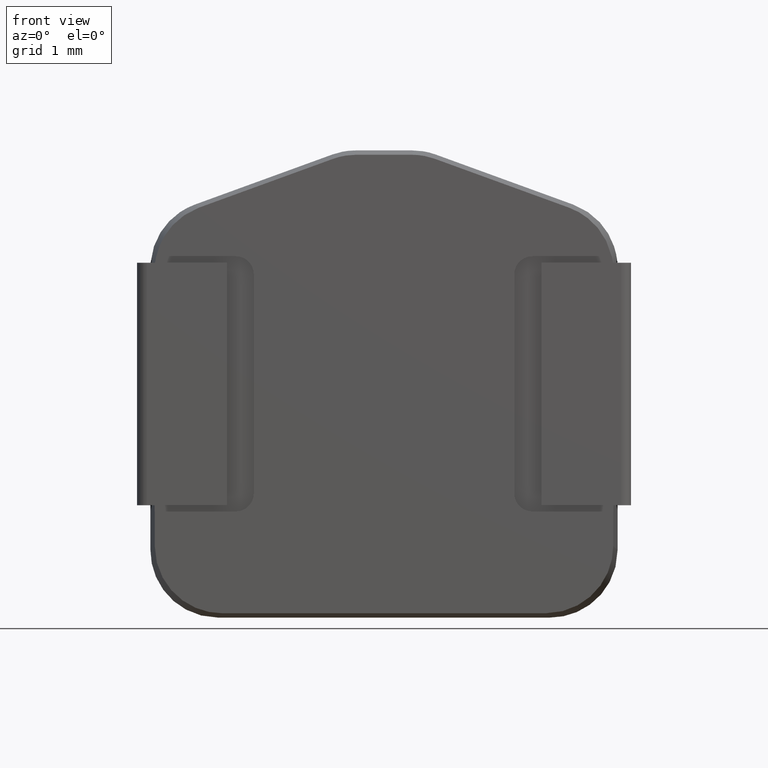
[diagram: clean part render]
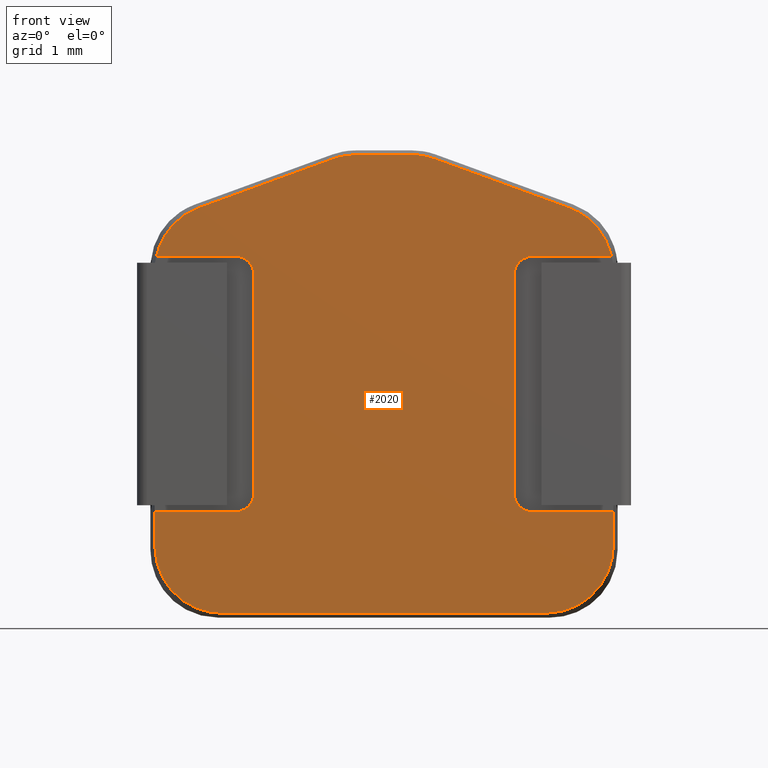
[diagram: same view with one face highlighted and labeled with its STEP entity id]
A machine part, front view. The second image highlights one B-rep face of the part: STEP entity #2020.
In plain terms, the highlighted planar face has unit normal (-0, 1, 0).
Its self-contained STEP definition (entity closure, byte-faithful):
#11 = CARTESIAN_POINT ( 'NONE',  ( 0.4833583205466018828, 0.0000000000000000000, 2.536732073546340782 ) ) ;
#22 = EDGE_CURVE ( 'NONE', #5334, #174, #356, .T. ) ;
#61 = ORIENTED_EDGE ( 'NONE', *, *, #144, .T. ) ;
#75 = CARTESIAN_POINT ( 'NONE',  ( 0.3093376250262445670, 0.0000000000000000000, 2.551956813953523806 ) ) ;
#90 = CARTESIAN_POINT ( 'NONE',  ( 0.5657476584076176485, 0.0000000000000000000, 2.506744806944029680 ) ) ;
#144 = EDGE_CURVE ( 'NONE', #3088, #5334, #2450, .T. ) ;
#174 = VERTEX_POINT ( 'NONE', #1915 ) ;
#179 = VERTEX_POINT ( 'NONE', #1977 ) ;
#211 = EDGE_CURVE ( 'NONE', #3508, #1465, #3136, .T. ) ;
#215 = VERTEX_POINT ( 'NONE', #4766 ) ;
#237 = ORIENTED_EDGE ( 'NONE', *, *, #1397, .T. ) ;
#327 = DIRECTION ( 'NONE',  ( 0.0000000000000000000, 0.0000000000000000000, 1.000000000000000000 ) ) ;
#349 = DIRECTION ( 'NONE',  ( -0.0000000000000000000, 1.000000000000000000, 0.0000000000000000000 ) ) ;
#356 =( BOUNDED_CURVE ( )  B_SPLINE_CURVE ( 3, ( #90, #11, #4158, #75 ),
 .UNSPECIFIED., .F., .T. ) 
 B_SPLINE_CURVE_WITH_KNOTS ( ( 4, 4 ),
 ( 2.967131955259545872, 3.316053351920040360 ),
 .UNSPECIFIED. ) 
 CURVE ( )  GEOMETRIC_REPRESENTATION_ITEM ( )  RATIONAL_B_SPLINE_CURVE ( ( 1.000000000000000000, 0.9898801950051174803, 0.9898801950051174803, 1.000000000000000000 ) ) 
 REPRESENTATION_ITEM ( '' )  );
#461 = CARTESIAN_POINT ( 'NONE',  ( -2.058674063488477479, 0.0000000000000000000, 1.963364033544548137 ) ) ;
#466 = CARTESIAN_POINT ( 'NONE',  ( 1.802264030107104009, 0.0000000000000000000, -2.551956813953526026 ) ) ;
#472 = ORIENTED_EDGE ( 'NONE', *, *, #211, .T. ) ;
#488 = ORIENTED_EDGE ( 'NONE', *, *, #3586, .T. ) ;
#560 = LINE ( 'NONE', #4436, #5071 ) ;
#588 = VERTEX_POINT ( 'NONE', #3241 ) ;
#601 = DIRECTION ( 'NONE',  ( -0.0000000000000000000, 1.000000000000000000, 0.0000000000000000000 ) ) ;
#608 =( BOUNDED_CURVE ( )  B_SPLINE_CURVE ( 3, ( #4808, #1236, #3900, #2597 ),
 .UNSPECIFIED., .F., .T. ) 
 B_SPLINE_CURVE_WITH_KNOTS ( ( 4, 4 ),
 ( 2.747493666576166671, 3.752171100490853117 ),
 .UNSPECIFIED. ) 
 CURVE ( )  GEOMETRIC_REPRESENTATION_ITEM ( )  RATIONAL_B_SPLINE_CURVE ( ( 1.000000000000000000, 0.9176392815101298561, 0.9176392815101298561, 1.000000000000000000 ) ) 
 REPRESENTATION_ITEM ( '' )  );
#642 = CARTESIAN_POINT ( 'NONE',  ( 2.636705223189261815, 0.0000000000000000000, -1.420000000000000373 ) ) ;
#686 = CARTESIAN_POINT ( 'NONE',  ( 1.650000000000000355, 0.0000000000000000000, 1.419999999999999929 ) ) ;
#694 = CARTESIAN_POINT ( 'NONE',  ( -0.3970145270669445114, 0.0000000000000000000, 2.551956813953524250 ) ) ;
#713 = DIRECTION ( 'NONE',  ( -1.000000000000000000, -0.0000000000000000000, 4.170008355713481095E-16 ) ) ;
#737 = EDGE_CURVE ( 'NONE', #2448, #4406, #5447, .T. ) ;
#755 = VECTOR ( 'NONE', #5608, 1000.000000000000000 ) ;
#839 = EDGE_CURVE ( 'NONE', #3383, #5293, #4211, .T. ) ;
#878 = DIRECTION ( 'NONE',  ( 1.000000000000000000, -0.0000000000000000000, 3.654495324699824498E-16 ) ) ;
#899 = CARTESIAN_POINT ( 'NONE',  ( 2.551956813953524250, 0.0000000000000000000, -2.241498359505317062 ) ) ;
#993 = ORIENTED_EDGE ( 'NONE', *, *, #737, .T. ) ;
#1019 = LINE ( 'NONE', #3213, #2096 ) ;
#1026 =( BOUNDED_CURVE ( )  B_SPLINE_CURVE ( 3, ( #5401, #2667, #899, #2706 ),
 .UNSPECIFIED., .F., .F. ) 
 B_SPLINE_CURVE_WITH_KNOTS ( ( 4, 4 ),
 ( 2.356604027881341601, 3.926581279298244631 ),
 .UNSPECIFIED. ) 
 CURVE ( )  GEOMETRIC_REPRESENTATION_ITEM ( )  RATIONAL_B_SPLINE_CURVE ( ( 1.000000000000000000, 0.8049308725047494839, 0.8049308725047494839, 1.000000000000000000 ) ) 
 REPRESENTATION_ITEM ( '' )  );
#1030 = EDGE_CURVE ( 'NONE', #5343, #4898, #4163, .T. ) ;
#1050 = ORIENTED_EDGE ( 'NONE', *, *, #2237, .F. ) ;
#1051 = CARTESIAN_POINT ( 'NONE',  ( 2.583568262622566003, 0.0000000000000000000, 1.772318168920743009 ) ) ;
#1065 = DIRECTION ( 'NONE',  ( 0.0000000000000000000, 0.0000000000000000000, 1.000000000000000000 ) ) ;
#1067 = ORIENTED_EDGE ( 'NONE', *, *, #4953, .T. ) ;
#1127 = EDGE_CURVE ( 'NONE', #215, #174, #1166, .T. ) ;
#1166 = LINE ( 'NONE', #4624, #4208 ) ;
#1236 = CARTESIAN_POINT ( 'NONE',  ( 2.478071493952764381, 0.0000000000000000000, 1.676241156313083902 ) ) ;
#1263 = CARTESIAN_POINT ( 'NONE',  ( 2.058674063488480144, 0.0000000000000000000, 1.963364033544547249 ) ) ;
#1371 = CARTESIAN_POINT ( 'NONE',  ( -2.241498359505315729, 0.0000000000000000000, -2.551956813953524250 ) ) ;
#1389 = DIRECTION ( 'NONE',  ( -0.0000000000000000000, -0.0000000000000000000, 1.000000000000000000 ) ) ;
#1394 = CIRCLE ( 'NONE', #3530, 0.2000000000000000944 ) ;
#1397 = EDGE_CURVE ( 'NONE', #5293, #4898, #560, .T. ) ;
#1465 = VERTEX_POINT ( 'NONE', #461 ) ;
#1501 = EDGE_CURVE ( 'NONE', #1465, #1883, #3010, .T. ) ;
#1507 = CARTESIAN_POINT ( 'NONE',  ( -1.649999999999999023, 0.0000000000000000000, 1.219999999999999973 ) ) ;
#1517 = PLANE ( 'NONE',  #5568 ) ;
#1523 = ORIENTED_EDGE ( 'NONE', *, *, #3753, .T. ) ;
#1651 = ORIENTED_EDGE ( 'NONE', *, *, #1501, .T. ) ;
#1656 = EDGE_CURVE ( 'NONE', #588, #2961, #4209, .T. ) ;
#1660 = DIRECTION ( 'NONE',  ( -1.000802005371234832E-15, -0.0000000000000000000, -1.000000000000000000 ) ) ;
#1697 = ORIENTED_EDGE ( 'NONE', *, *, #4087, .T. ) ;
#1751 = VECTOR ( 'NONE', #1389, 1000.000000000000000 ) ;
#1761 = ORIENTED_EDGE ( 'NONE', *, *, #4339, .T. ) ;
#1836 = CARTESIAN_POINT ( 'NONE',  ( -1.649999999999999023, 0.0000000000000000000, 1.419999999999999929 ) ) ;
#1852 = CARTESIAN_POINT ( 'NONE',  ( 1.649999999999999911, 0.0000000000000000000, -1.419999999999999929 ) ) ;
#1883 = VERTEX_POINT ( 'NONE', #3226 ) ;
#1915 = CARTESIAN_POINT ( 'NONE',  ( 0.3093376250262445670, 0.0000000000000000000, 2.551956813953523806 ) ) ;
#1927 = VECTOR ( 'NONE', #1660, 1000.000000000000000 ) ;
#1971 = DIRECTION ( 'NONE',  ( -1.000000000000000000, 0.0000000000000000000, 3.654495324699823018E-16 ) ) ;
#1977 = CARTESIAN_POINT ( 'NONE',  ( 2.534444405110844567, 0.0000000000000000000, 1.420000000000000373 ) ) ;
#2017 = ORIENTED_EDGE ( 'NONE', *, *, #5582, .T. ) ;
#2020 = ADVANCED_FACE ( 'NONE', ( #4765 ), #1517, .F. ) ;
#2034 = ORIENTED_EDGE ( 'NONE', *, *, #4194, .T. ) ;
#2087 = LINE ( 'NONE', #4834, #1927 ) ;
#2096 = VECTOR ( 'NONE', #4630, 1000.000000000000000 ) ;
#2123 = ORIENTED_EDGE ( 'NONE', *, *, #2626, .F. ) ;
#2133 = LINE ( 'NONE', #3381, #3181 ) ;
#2237 = EDGE_CURVE ( 'NONE', #588, #5270, #2087, .T. ) ;
#2275 = CARTESIAN_POINT ( 'NONE',  ( -2.551956813953525138, 0.0000000000000000000, -2.599999999999999201 ) ) ;
#2288 = CARTESIAN_POINT ( 'NONE',  ( -1.449999999999999067, 0.0000000000000000000, -1.219999999999999973 ) ) ;
#2324 = CARTESIAN_POINT ( 'NONE',  ( 1.650000000000000355, 0.0000000000000000000, 1.219999999999999973 ) ) ;
#2448 = VERTEX_POINT ( 'NONE', #1836 ) ;
#2450 = LINE ( 'NONE', #1051, #5847 ) ;
#2548 = CARTESIAN_POINT ( 'NONE',  ( 1.649999999999999911, 0.0000000000000000000, -1.219999999999999973 ) ) ;
#2565 = CIRCLE ( 'NONE', #4370, 0.2000000000000000944 ) ;
#2597 = CARTESIAN_POINT ( 'NONE',  ( 2.058674063488480144, 0.0000000000000000000, 1.963364033544547249 ) ) ;
#2626 = EDGE_CURVE ( 'NONE', #2907, #2680, #5317, .T. ) ;
#2633 = DIRECTION ( 'NONE',  ( -0.0000000000000000000, 1.000000000000000000, 0.0000000000000000000 ) ) ;
#2634 = CARTESIAN_POINT ( 'NONE',  ( 2.551956813953524250, 0.0000000000000000000, -1.802264030107106674 ) ) ;
#2667 = CARTESIAN_POINT ( 'NONE',  ( 2.241498359505313953, 0.0000000000000000000, -2.551956813953526471 ) ) ;
#2680 = VERTEX_POINT ( 'NONE', #3901 ) ;
#2706 = CARTESIAN_POINT ( 'NONE',  ( 2.551956813953524250, 0.0000000000000000000, -1.802264030107106674 ) ) ;
#2726 = CARTESIAN_POINT ( 'NONE',  ( -2.058674063488477479, 0.0000000000000000000, 1.963364033544548137 ) ) ;
#2873 = CARTESIAN_POINT ( 'NONE',  ( -0.5657476584076163162, 0.0000000000000000000, 2.506744806944029680 ) ) ;
#2907 = VERTEX_POINT ( 'NONE', #466 ) ;
#2961 = VERTEX_POINT ( 'NONE', #1852 ) ;
#3010 =( BOUNDED_CURVE ( )  B_SPLINE_CURVE ( 3, ( #2726, #4954, #4544, #4082 ),
 .UNSPECIFIED., .F., .T. ) 
 B_SPLINE_CURVE_WITH_KNOTS ( ( 4, 4 ),
 ( 2.531014206688733559, 3.535691640603423114 ),
 .UNSPECIFIED. ) 
 CURVE ( )  GEOMETRIC_REPRESENTATION_ITEM ( )  RATIONAL_B_SPLINE_CURVE ( ( 1.000000000000000000, 0.9176392815101294120, 0.9176392815101294120, 1.000000000000000000 ) ) 
 REPRESENTATION_ITEM ( '' )  );
#3023 = VECTOR ( 'NONE', #3958, 1000.000000000000000 ) ;
#3088 = VERTEX_POINT ( 'NONE', #1263 ) ;
#3105 = LINE ( 'NONE', #5826, #4310 ) ;
#3135 = AXIS2_PLACEMENT_3D ( 'NONE', #3540, #349, #3497 ) ;
#3136 = LINE ( 'NONE', #4255, #755 ) ;
#3181 = VECTOR ( 'NONE', #4763, 1000.000000000000000 ) ;
#3213 = CARTESIAN_POINT ( 'NONE',  ( -2.636705223189260927, 0.0000000000000000000, 1.419999999999999929 ) ) ;
#3226 = CARTESIAN_POINT ( 'NONE',  ( -2.534444405110842791, 0.0000000000000000000, 1.419999999999999929 ) ) ;
#3241 = CARTESIAN_POINT ( 'NONE',  ( 2.551956813953527359, 0.0000000000000000000, -1.420000000000000373 ) ) ;
#3277 = ORIENTED_EDGE ( 'NONE', *, *, #1656, .T. ) ;
#3288 = DIRECTION ( 'NONE',  ( -0.9396926207859080948, 0.0000000000000000000, 0.3420201433256695456 ) ) ;
#3316 = CARTESIAN_POINT ( 'NONE',  ( -0.4833583205466009947, 0.0000000000000000000, 2.536732073546340782 ) ) ;
#3381 = CARTESIAN_POINT ( 'NONE',  ( 1.449999999999999956, 0.0000000000000000000, -1.419999999999999929 ) ) ;
#3383 = VERTEX_POINT ( 'NONE', #2288 ) ;
#3461 = CARTESIAN_POINT ( 'NONE',  ( 1.450000000000000400, 0.0000000000000000000, 1.219999999999999973 ) ) ;
#3497 = DIRECTION ( 'NONE',  ( 0.0000000000000000000, 0.0000000000000000000, 1.000000000000000000 ) ) ;
#3508 = VERTEX_POINT ( 'NONE', #5040 ) ;
#3530 = AXIS2_PLACEMENT_3D ( 'NONE', #2324, #5509, #3742 ) ;
#3531 = VERTEX_POINT ( 'NONE', #686 ) ;
#3535 = CARTESIAN_POINT ( 'NONE',  ( 1.449999999999999956, 0.0000000000000000000, -1.219999999999999973 ) ) ;
#3540 = CARTESIAN_POINT ( 'NONE',  ( -1.649999999999999023, 0.0000000000000000000, -1.219999999999999973 ) ) ;
#3543 = CARTESIAN_POINT ( 'NONE',  ( -1.649999999999999023, 0.0000000000000000000, -1.419999999999999929 ) ) ;
#3559 = CARTESIAN_POINT ( 'NONE',  ( 0.5657476584076176485, 0.0000000000000000000, 2.506744806944029680 ) ) ;
#3586 = EDGE_CURVE ( 'NONE', #179, #3088, #608, .T. ) ;
#3695 = ORIENTED_EDGE ( 'NONE', *, *, #5092, .T. ) ;
#3741 = EDGE_CURVE ( 'NONE', #4406, #3383, #5425, .T. ) ;
#3742 = DIRECTION ( 'NONE',  ( 0.0000000000000000000, 0.0000000000000000000, 1.000000000000000000 ) ) ;
#3747 = CARTESIAN_POINT ( 'NONE',  ( 0.0000000000000000000, 0.0000000000000000000, 0.0000000000000000000 ) ) ;
#3753 = EDGE_CURVE ( 'NONE', #3531, #179, #3105, .T. ) ;
#3846 =( BOUNDED_CURVE ( )  B_SPLINE_CURVE ( 3, ( #5108, #694, #3316, #2873 ),
 .UNSPECIFIED., .F., .F. ) 
 B_SPLINE_CURVE_WITH_KNOTS ( ( 4, 4 ),
 ( 2.967131955259545872, 3.316053351920039471 ),
 .UNSPECIFIED. ) 
 CURVE ( )  GEOMETRIC_REPRESENTATION_ITEM ( )  RATIONAL_B_SPLINE_CURVE ( ( 1.000000000000000000, 0.9898801950051174803, 0.9898801950051174803, 1.000000000000000000 ) ) 
 REPRESENTATION_ITEM ( '' )  );
#3900 = CARTESIAN_POINT ( 'NONE',  ( 2.305247469230180091, 0.0000000000000000000, 1.873618653292924874 ) ) ;
#3901 = CARTESIAN_POINT ( 'NONE',  ( -1.802264030107105341, 0.0000000000000000000, -2.551956813953524694 ) ) ;
#3912 = ORIENTED_EDGE ( 'NONE', *, *, #839, .T. ) ;
#3958 = DIRECTION ( 'NONE',  ( -0.0000000000000000000, -0.0000000000000000000, -1.000000000000000000 ) ) ;
#3973 = AXIS2_PLACEMENT_3D ( 'NONE', #1507, #5166, #1065 ) ;
#3994 = CARTESIAN_POINT ( 'NONE',  ( -1.449999999999999067, 0.0000000000000000000, -1.419999999999999929 ) ) ;
#4082 = CARTESIAN_POINT ( 'NONE',  ( -2.534444405110842791, 0.0000000000000000000, 1.419999999999999929 ) ) ;
#4087 = EDGE_CURVE ( 'NONE', #2961, #4919, #2565, .T. ) ;
#4126 = VECTOR ( 'NONE', #713, 1000.000000000000000 ) ;
#4145 = DIRECTION ( 'NONE',  ( 1.000000000000000000, -0.0000000000000000000, -8.340016711426954056E-17 ) ) ;
#4158 = CARTESIAN_POINT ( 'NONE',  ( 0.3970145270669452886, 0.0000000000000000000, 2.551956813953524250 ) ) ;
#4163 = LINE ( 'NONE', #2275, #1751 ) ;
#4194 = EDGE_CURVE ( 'NONE', #2907, #5270, #1026, .T. ) ;
#4208 = VECTOR ( 'NONE', #4145, 1000.000000000000000 ) ;
#4209 = LINE ( 'NONE', #642, #4661 ) ;
#4211 = CIRCLE ( 'NONE', #3135, 0.2000000000000000944 ) ;
#4255 = CARTESIAN_POINT ( 'NONE',  ( -2.583568262622562894, 0.0000000000000000000, 1.772318168920744119 ) ) ;
#4310 = VECTOR ( 'NONE', #878, 1000.000000000000000 ) ;
#4328 = CARTESIAN_POINT ( 'NONE',  ( -2.600000000000000089, 0.0000000000000000000, -2.551956813953524250 ) ) ;
#4339 = EDGE_CURVE ( 'NONE', #4919, #5250, #2133, .T. ) ;
#4366 = ORIENTED_EDGE ( 'NONE', *, *, #5463, .T. ) ;
#4370 = AXIS2_PLACEMENT_3D ( 'NONE', #2548, #2633, #327 ) ;
#4406 = VERTEX_POINT ( 'NONE', #5292 ) ;
#4408 = CARTESIAN_POINT ( 'NONE',  ( -2.551956813953525138, 0.0000000000000000000, -1.419999999999999929 ) ) ;
#4432 = ORIENTED_EDGE ( 'NONE', *, *, #1127, .F. ) ;
#4436 = CARTESIAN_POINT ( 'NONE',  ( -2.636705223189260927, 0.0000000000000000000, -1.419999999999999929 ) ) ;
#4544 = CARTESIAN_POINT ( 'NONE',  ( -2.478071493952763493, 0.0000000000000000000, 1.676241156313084790 ) ) ;
#4556 =( BOUNDED_CURVE ( )  B_SPLINE_CURVE ( 3, ( #5833, #5432, #1371, #5397 ),
 .UNSPECIFIED., .F., .T. ) 
 B_SPLINE_CURVE_WITH_KNOTS ( ( 4, 4 ),
 ( 2.356604027881341601, 3.926581279298244631 ),
 .UNSPECIFIED. ) 
 CURVE ( )  GEOMETRIC_REPRESENTATION_ITEM ( )  RATIONAL_B_SPLINE_CURVE ( ( 1.000000000000000000, 0.8049308725047494839, 0.8049308725047494839, 1.000000000000000000 ) ) 
 REPRESENTATION_ITEM ( '' )  );
#4624 = CARTESIAN_POINT ( 'NONE',  ( -2.600000000000000089, 0.0000000000000000000, 2.551956813953524250 ) ) ;
#4630 = DIRECTION ( 'NONE',  ( 1.000000000000000000, 0.0000000000000000000, 1.827247662349911509E-16 ) ) ;
#4661 = VECTOR ( 'NONE', #1971, 1000.000000000000000 ) ;
#4763 = DIRECTION ( 'NONE',  ( 1.527045313359865476E-16, 0.0000000000000000000, 1.000000000000000000 ) ) ;
#4765 = FACE_OUTER_BOUND ( 'NONE', #5625, .T. ) ;
#4766 = CARTESIAN_POINT ( 'NONE',  ( -0.3093376250262441229, 0.0000000000000000000, 2.551956813953524250 ) ) ;
#4808 = CARTESIAN_POINT ( 'NONE',  ( 2.534444405110844567, 0.0000000000000000000, 1.420000000000000373 ) ) ;
#4834 = CARTESIAN_POINT ( 'NONE',  ( 2.551956813953523362, 0.0000000000000000000, -2.600000000000000977 ) ) ;
#4892 = CARTESIAN_POINT ( 'NONE',  ( -2.551956813953525138, 0.0000000000000000000, -1.802264030107104675 ) ) ;
#4898 = VERTEX_POINT ( 'NONE', #4408 ) ;
#4908 = ORIENTED_EDGE ( 'NONE', *, *, #1030, .F. ) ;
#4919 = VERTEX_POINT ( 'NONE', #3535 ) ;
#4953 = EDGE_CURVE ( 'NONE', #5343, #2680, #4556, .T. ) ;
#4954 = CARTESIAN_POINT ( 'NONE',  ( -2.305247469230176982, 0.0000000000000000000, 1.873618653292925984 ) ) ;
#4966 = ORIENTED_EDGE ( 'NONE', *, *, #3741, .T. ) ;
#5040 = CARTESIAN_POINT ( 'NONE',  ( -0.5657476584076163162, 0.0000000000000000000, 2.506744806944029680 ) ) ;
#5071 = VECTOR ( 'NONE', #5440, 1000.000000000000000 ) ;
#5092 = EDGE_CURVE ( 'NONE', #5250, #3531, #1394, .T. ) ;
#5108 = CARTESIAN_POINT ( 'NONE',  ( -0.3093376250262441229, 0.0000000000000000000, 2.551956813953524250 ) ) ;
#5166 = DIRECTION ( 'NONE',  ( -0.0000000000000000000, 1.000000000000000000, 0.0000000000000000000 ) ) ;
#5250 = VERTEX_POINT ( 'NONE', #3461 ) ;
#5255 = ORIENTED_EDGE ( 'NONE', *, *, #22, .T. ) ;
#5270 = VERTEX_POINT ( 'NONE', #2634 ) ;
#5292 = CARTESIAN_POINT ( 'NONE',  ( -1.449999999999999067, 0.0000000000000000000, 1.219999999999999973 ) ) ;
#5293 = VERTEX_POINT ( 'NONE', #3543 ) ;
#5317 = LINE ( 'NONE', #4328, #4126 ) ;
#5334 = VERTEX_POINT ( 'NONE', #3559 ) ;
#5343 = VERTEX_POINT ( 'NONE', #4892 ) ;
#5397 = CARTESIAN_POINT ( 'NONE',  ( -1.802264030107105341, 0.0000000000000000000, -2.551956813953524694 ) ) ;
#5401 = CARTESIAN_POINT ( 'NONE',  ( 1.802264030107104009, 0.0000000000000000000, -2.551956813953526026 ) ) ;
#5425 = LINE ( 'NONE', #3994, #3023 ) ;
#5432 = CARTESIAN_POINT ( 'NONE',  ( -2.551956813953525582, 0.0000000000000000000, -2.241498359505314841 ) ) ;
#5440 = DIRECTION ( 'NONE',  ( -1.000000000000000000, -0.0000000000000000000, 1.827247662349911509E-16 ) ) ;
#5447 = CIRCLE ( 'NONE', #3973, 0.2000000000000000944 ) ;
#5463 = EDGE_CURVE ( 'NONE', #1883, #2448, #1019, .T. ) ;
#5509 = DIRECTION ( 'NONE',  ( -0.0000000000000000000, 1.000000000000000000, 0.0000000000000000000 ) ) ;
#5545 = DIRECTION ( 'NONE',  ( 0.0000000000000000000, -0.0000000000000000000, 1.000000000000000000 ) ) ;
#5568 = AXIS2_PLACEMENT_3D ( 'NONE', #3747, #601, #5545 ) ;
#5582 = EDGE_CURVE ( 'NONE', #215, #3508, #3846, .T. ) ;
#5608 = DIRECTION ( 'NONE',  ( -0.9396926207859082059, 0.0000000000000000000, -0.3420201433256694346 ) ) ;
#5625 = EDGE_LOOP ( 'NONE', ( #4366, #993, #4966, #3912, #237, #4908, #1067, #2123, #2034, #1050, #3277, #1697, #1761, #3695, #1523, #488, #61, #5255, #4432, #2017, #472, #1651 ) ) ;
#5826 = CARTESIAN_POINT ( 'NONE',  ( 2.636705223189261815, 0.0000000000000000000, 1.420000000000000373 ) ) ;
#5833 = CARTESIAN_POINT ( 'NONE',  ( -2.551956813953525138, 0.0000000000000000000, -1.802264030107104675 ) ) ;
#5847 = VECTOR ( 'NONE', #3288, 1000.000000000000114 ) ;